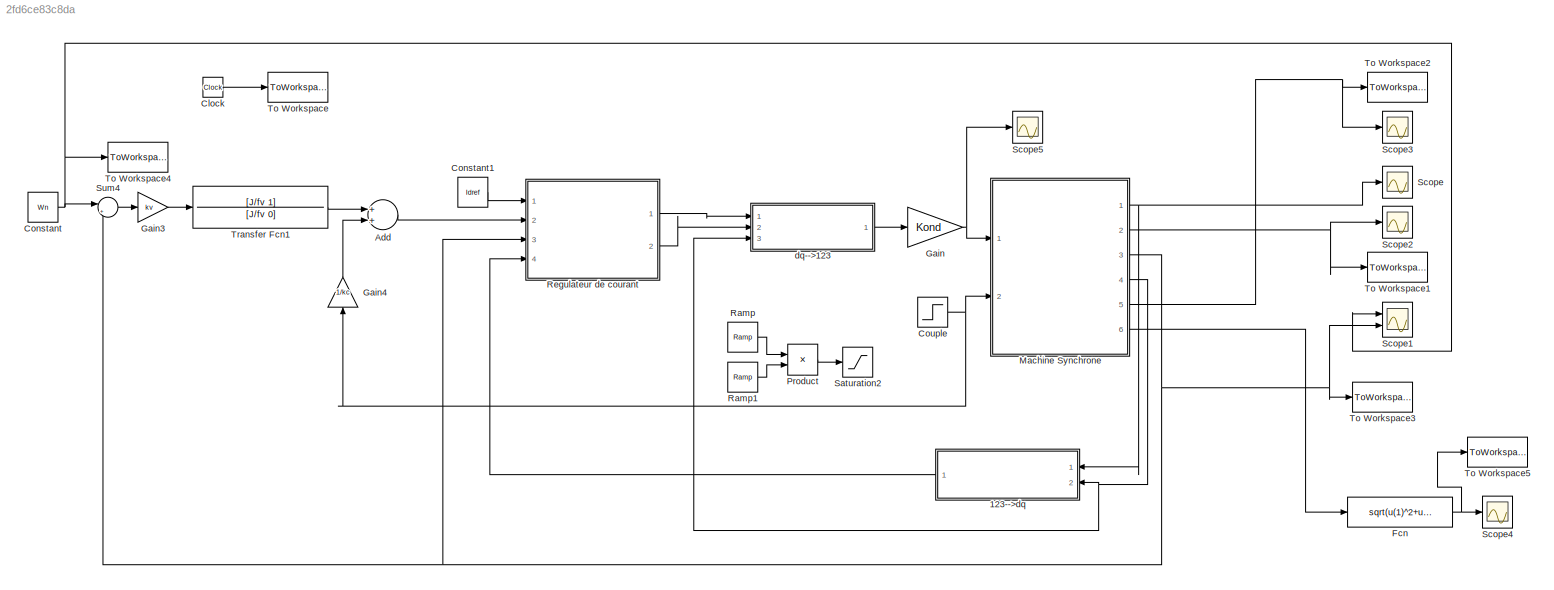
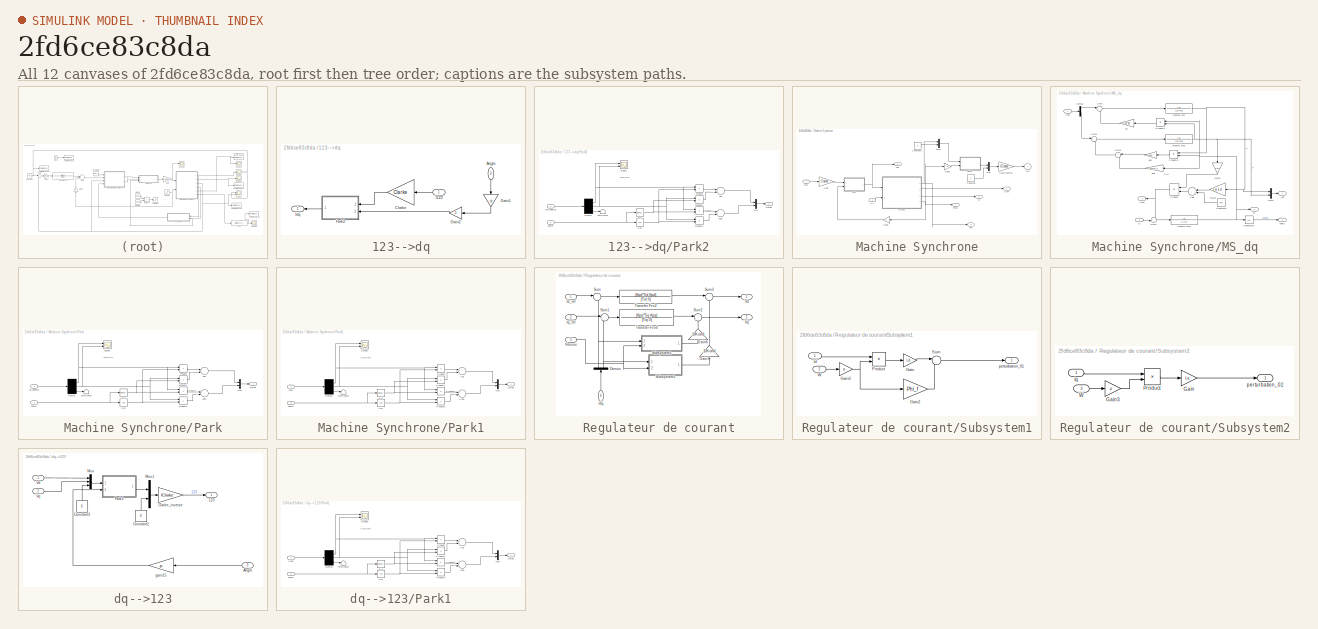
[diagram: thumbnail index - all 12 canvases of the model, root first then tree order]
MODEL slx_2fd6ce83c8da
KIND model
CONFIG AbsTol = auto
CONFIG EnableMultiTasking = off
CONFIG FixedStep = Tid/100
CONFIG MaxStep = auto
CONFIG MinStep = auto
CONFIG RelTol = 1e-3
CONFIG SampleTimeConstraint = Unconstrained
CONFIG Solver = FixedStepAuto
CONFIG SolverName = FixedStepAuto
CONFIG StartTime = 0.0
CONFIG StopTime = Tsim_all
BLOCK [SubSystem] 123-->dq
  Ports = [2, 1]
  RequestExecContextInheritance = off
BLOCK [Inport] 123-->dq/Angle
  IconDisplay = Port number
  Port = 2
BLOCK [Gain] 123-->dq/Clarke
  Gain = Clarke
  Multiplication = Matrix(K*u)
  OutDataTypeStr = Inherit: Inherit via internal rule
  ParamDataTypeStr = Inherit: Inherit via internal rule
  SaturateOnIntegerOverflow = off
BLOCK [Gain] 123-->dq/Gain1
  Gain = -p
  OutDataTypeStr = Inherit: Inherit via internal rule
  ParamDataTypeStr = Inherit: Inherit via internal rule
  SaturateOnIntegerOverflow = off
BLOCK [Gain] 123-->dq/Gain2
  Gain = -1
  OutDataTypeStr = Inherit: Inherit via internal rule
  ParamDataTypeStr = Inherit: Inherit via internal rule
  SaturateOnIntegerOverflow = off
BLOCK [Inport] 123-->dq/I123
  IconDisplay = Port number
BLOCK [Outport] 123-->dq/Idq
  IconDisplay = Port number
BLOCK [SubSystem] 123-->dq/Park2
  Ports = [2, 1]
  RequestExecContextInheritance = off
BLOCK [Sum] 123-->dq/Park2/Add
  InputSameDT = off
  OutDataTypeStr = Inherit: Inherit via internal rule
  Ports = [2, 1]
  SaturateOnIntegerOverflow = off
BLOCK [Sum] 123-->dq/Park2/Add1
  InputSameDT = off
  Inputs = -+
  OutDataTypeStr = Inherit: Inherit via internal rule
  Ports = [2, 1]
  SaturateOnIntegerOverflow = off
BLOCK [Trigonometry] 123-->dq/Park2/Cos
  Operator = cos
  Ports = [1, 1]
BLOCK [Demux] 123-->dq/Park2/Demux
  Outputs = 3
  Ports = [1, 3]
BLOCK [Inport] 123-->dq/Park2/Inalfabeta0
  IconDisplay = Port number
BLOCK [Mux] 123-->dq/Park2/Mux
  DisplayOption = bar
  Inputs = 2
  Ports = [2, 1]
BLOCK [Outport] 123-->dq/Park2/Outdq
  IconDisplay = Port number
BLOCK [Product] 123-->dq/Park2/Product
  InputSameDT = off
  OutDataTypeStr = Inherit: Inherit via internal rule
  Ports = [2, 1]
  RndMeth = Floor
  SaturateOnIntegerOverflow = off
BLOCK [Product] 123-->dq/Park2/Product1
  InputSameDT = off
  OutDataTypeStr = Inherit: Inherit via internal rule
  Ports = [2, 1]
  RndMeth = Floor
  SaturateOnIntegerOverflow = off
BLOCK [Product] 123-->dq/Park2/Product2
  InputSameDT = off
  OutDataTypeStr = Inherit: Inherit via internal rule
  Ports = [2, 1]
  RndMeth = Floor
  SaturateOnIntegerOverflow = off
BLOCK [Product] 123-->dq/Park2/Product3
  InputSameDT = off
  OutDataTypeStr = Inherit: Inherit via internal rule
  Ports = [2, 1]
  RndMeth = Floor
  SaturateOnIntegerOverflow = off
BLOCK [Scope] 123-->dq/Park2/Scope1
  Floating = off
  NumInputPorts = 2
  Ports = [2]
  ScopeSpecificationString = Simulink.scopes.TimeScopeBlockCfg('CurrentConfiguration', extmgr.ConfigurationSet(extmgr.Configuration('Core','General UI',true),extmgr.Configuration('Core','Source UI',true),extmgr.Configuration('Sources','WiredSimulink',true,'DataLoggingVariableName','ScopeData1'),extmgr.Configuration('Visuals','Time Domain',true,'SerializedDisplays',{struct('MinYLimReal','-1.53093','MaxYLimReal','1.53093','YLab...<+1376ch>  <repeated x4 — deduplicated; at blocks: Scope1>
BLOCK [Trigonometry] 123-->dq/Park2/Sin
  Ports = [1, 1]
BLOCK [Terminator] 123-->dq/Park2/Terminator
BLOCK [Inport] 123-->dq/Park2/angle
  IconDisplay = Port number
  Port = 2
BLOCK [Sum] Add
  InputSameDT = off
  OutDataTypeStr = Inherit: Inherit via internal rule
  Ports = [2, 1]
  SaturateOnIntegerOverflow = off
BLOCK [Clock] Clock
BLOCK [Constant] Constant
  Value = Wn
BLOCK [Constant] Constant1
  Value = Idref
BLOCK [Step] Couple
  After = Cn
  SampleTime = 0
  Time = delay_torque
BLOCK [Fcn] Fcn
  Expr = sqrt(u(1)^2+u(2)^2)
BLOCK [Gain] Gain
  Gain = Kond
  OutDataTypeStr = Inherit: Inherit via internal rule
  ParamDataTypeStr = Inherit: Inherit via internal rule
  SaturateOnIntegerOverflow = off
BLOCK [Gain] Gain3
  Gain = kv
  OutDataTypeStr = Inherit: Inherit via internal rule
  ParamDataTypeStr = Inherit: Inherit via internal rule
  SaturateOnIntegerOverflow = off
BLOCK [Gain] Gain4
  Gain = 1/kc
  OutDataTypeStr = Inherit: Inherit via internal rule
  ParamDataTypeStr = Inherit: Inherit via internal rule
  SaturateOnIntegerOverflow = off
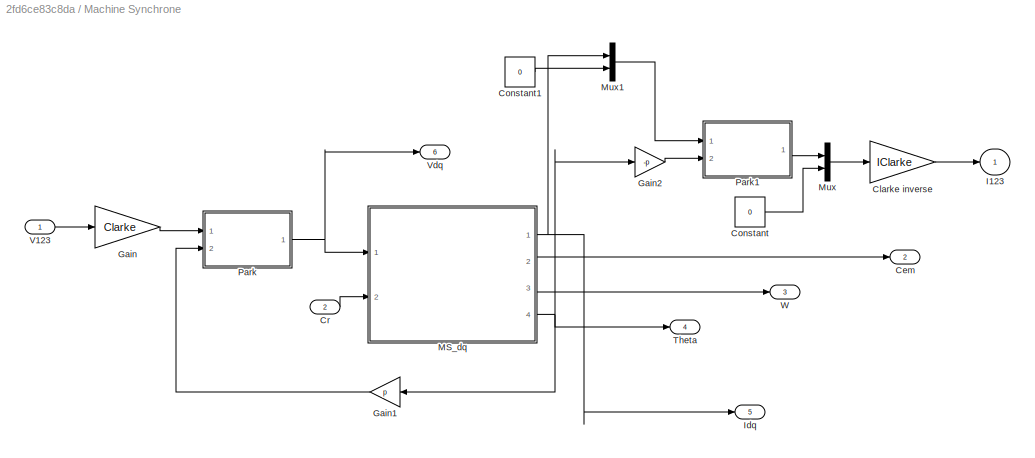
BLOCK [SubSystem] Machine Synchrone
  Ports = [2, 6]
  RequestExecContextInheritance = off
BLOCK [Outport] Machine Synchrone/Cem
  IconDisplay = Port number
  Port = 2
BLOCK [Gain] Machine Synchrone/Clarke inverse
  Gain = IClarke
  Multiplication = Matrix(K*u)
  OutDataTypeStr = Inherit: Inherit via internal rule
  ParamDataTypeStr = Inherit: Inherit via internal rule
  SaturateOnIntegerOverflow = off
BLOCK [Constant] Machine Synchrone/Constant
  Value = 0
BLOCK [Constant] Machine Synchrone/Constant1
  Value = 0
BLOCK [Inport] Machine Synchrone/Cr
  IconDisplay = Port number
  Port = 2
BLOCK [Gain] Machine Synchrone/Gain
  Gain = Clarke
  Multiplication = Matrix(K*u)
  OutDataTypeStr = Inherit: Inherit via internal rule
  ParamDataTypeStr = Inherit: Inherit via internal rule
  SaturateOnIntegerOverflow = off
BLOCK [Gain] Machine Synchrone/Gain1
  Gain = p
  OutDataTypeStr = Inherit: Inherit via internal rule
  ParamDataTypeStr = Inherit: Inherit via internal rule
  SaturateOnIntegerOverflow = off
BLOCK [Gain] Machine Synchrone/Gain2
  Gain = -p
  OutDataTypeStr = Inherit: Inherit via internal rule
  ParamDataTypeStr = Inherit: Inherit via internal rule
  SaturateOnIntegerOverflow = off
BLOCK [Outport] Machine Synchrone/I123
  IconDisplay = Port number
BLOCK [Outport] Machine Synchrone/Idq
  IconDisplay = Port number
  Port = 5
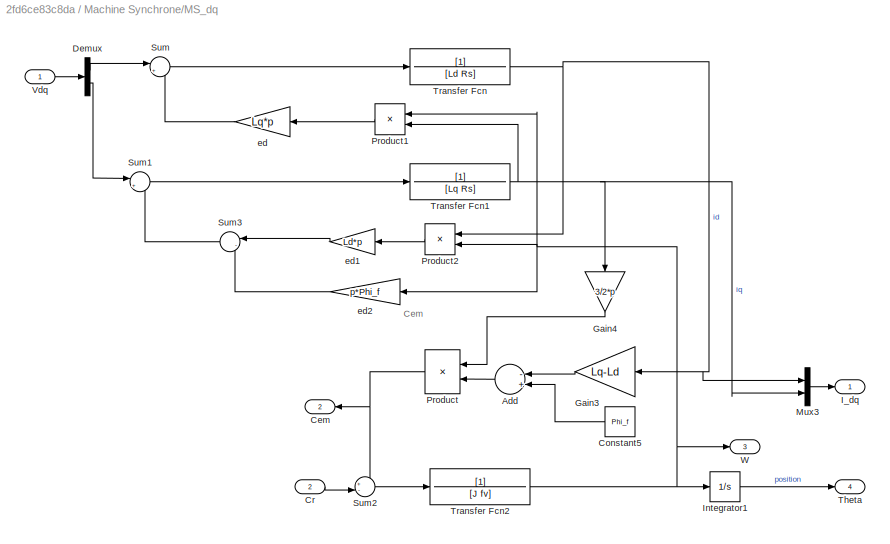
BLOCK [SubSystem] Machine Synchrone/MS_dq
  Ports = [2, 4]
  RequestExecContextInheritance = off
BLOCK [Sum] Machine Synchrone/MS_dq/Add
  InputSameDT = off
  Inputs = -+
  OutDataTypeStr = Inherit: Inherit via internal rule
  Ports = [2, 1]
  SaturateOnIntegerOverflow = off
BLOCK [Outport] Machine Synchrone/MS_dq/Cem
  IconDisplay = Port number
  Port = 2
BLOCK [Constant] Machine Synchrone/MS_dq/Constant5
  Value = Phi_f
BLOCK [Inport] Machine Synchrone/MS_dq/Cr
  IconDisplay = Port number
  Port = 2
BLOCK [Demux] Machine Synchrone/MS_dq/Demux
  DisplayOption = bar
  Outputs = 2
  Ports = [1, 2]
BLOCK [Gain] Machine Synchrone/MS_dq/Gain3
  Gain = Lq-Ld
  OutDataTypeStr = Inherit: Inherit via internal rule
  ParamDataTypeStr = Inherit: Inherit via internal rule
  SaturateOnIntegerOverflow = off
BLOCK [Gain] Machine Synchrone/MS_dq/Gain4
  Gain = 3/2*p
  OutDataTypeStr = Inherit: Inherit via internal rule
  ParamDataTypeStr = Inherit: Inherit via internal rule
  SaturateOnIntegerOverflow = off
BLOCK [Outport] Machine Synchrone/MS_dq/I_dq
  IconDisplay = Port number
BLOCK [Integrator] Machine Synchrone/MS_dq/Integrator1
  Ports = [1, 1]
BLOCK [Mux] Machine Synchrone/MS_dq/Mux3
  DisplayOption = bar
  Inputs = 2
  Ports = [2, 1]
BLOCK [Product] Machine Synchrone/MS_dq/Product
  InputSameDT = off
  OutDataTypeStr = Inherit: Inherit via internal rule
  Ports = [2, 1]
  RndMeth = Floor
  SaturateOnIntegerOverflow = off
BLOCK [Product] Machine Synchrone/MS_dq/Product1
  InputSameDT = off
  OutDataTypeStr = Inherit: Inherit via internal rule
  Ports = [2, 1]
  RndMeth = Floor
  SaturateOnIntegerOverflow = off
BLOCK [Product] Machine Synchrone/MS_dq/Product2
  InputSameDT = off
  OutDataTypeStr = Inherit: Inherit via internal rule
  Ports = [2, 1]
  RndMeth = Floor
  SaturateOnIntegerOverflow = off
BLOCK [Sum] Machine Synchrone/MS_dq/Sum
  IconShape = round
  InputSameDT = off
  Inputs = |++
  OutDataTypeStr = Inherit: Inherit via internal rule
  Ports = [2, 1]
  SaturateOnIntegerOverflow = off
BLOCK [Sum] Machine Synchrone/MS_dq/Sum1
  IconShape = round
  InputSameDT = off
  Inputs = |++
  OutDataTypeStr = Inherit: Inherit via internal rule
  Ports = [2, 1]
  SaturateOnIntegerOverflow = off
BLOCK [Sum] Machine Synchrone/MS_dq/Sum2
  IconShape = round
  InputSameDT = off
  Inputs = +-|
  OutDataTypeStr = Inherit: Inherit via internal rule
  Ports = [2, 1]
  SaturateOnIntegerOverflow = off
BLOCK [Sum] Machine Synchrone/MS_dq/Sum3
  IconShape = round
  InputSameDT = off
  Inputs = |--
  OutDataTypeStr = Inherit: Inherit via internal rule
  Ports = [2, 1]
  SaturateOnIntegerOverflow = off
BLOCK [Outport] Machine Synchrone/MS_dq/Theta
  IconDisplay = Port number
  Port = 4
BLOCK [TransferFcn] Machine Synchrone/MS_dq/Transfer Fcn
  Denominator = [Ld Rs]
BLOCK [TransferFcn] Machine Synchrone/MS_dq/Transfer Fcn1
  Denominator = [Lq Rs]
BLOCK [TransferFcn] Machine Synchrone/MS_dq/Transfer Fcn2
  Denominator = [J fv]
BLOCK [Inport] Machine Synchrone/MS_dq/Vdq
  IconDisplay = Port number
BLOCK [Outport] Machine Synchrone/MS_dq/W
  IconDisplay = Port number
  Port = 3
BLOCK [Gain] Machine Synchrone/MS_dq/ed
  Gain = Lq*p
  OutDataTypeStr = Inherit: Inherit via internal rule
  ParamDataTypeStr = Inherit: Inherit via internal rule
  SaturateOnIntegerOverflow = off
BLOCK [Gain] Machine Synchrone/MS_dq/ed1
  Gain = Ld*p
  OutDataTypeStr = Inherit: Inherit via internal rule
  ParamDataTypeStr = Inherit: Inherit via internal rule
  SaturateOnIntegerOverflow = off
BLOCK [Gain] Machine Synchrone/MS_dq/ed2
  Gain = p*Phi_f
  OutDataTypeStr = Inherit: Inherit via internal rule
  ParamDataTypeStr = Inherit: Inherit via internal rule
  SaturateOnIntegerOverflow = off
BLOCK [Mux] Machine Synchrone/Mux
  DisplayOption = bar
  Inputs = 2
  Ports = [2, 1]
BLOCK [Mux] Machine Synchrone/Mux1
  DisplayOption = bar
  Inputs = 2
  Ports = [2, 1]
BLOCK [SubSystem] Machine Synchrone/Park
  Ports = [2, 1]
  RequestExecContextInheritance = off
BLOCK [Sum] Machine Synchrone/Park/Add
  InputSameDT = off
  OutDataTypeStr = Inherit: Inherit via internal rule
  Ports = [2, 1]
  SaturateOnIntegerOverflow = off
BLOCK [Sum] Machine Synchrone/Park/Add1
  InputSameDT = off
  Inputs = -+
  OutDataTypeStr = Inherit: Inherit via internal rule
  Ports = [2, 1]
  SaturateOnIntegerOverflow = off
BLOCK [Trigonometry] Machine Synchrone/Park/Cos
  Operator = cos
  Ports = [1, 1]
BLOCK [Demux] Machine Synchrone/Park/Demux
  Outputs = 3
  Ports = [1, 3]
BLOCK [Inport] Machine Synchrone/Park/Ialfabeta0
  IconDisplay = Port number
BLOCK [Mux] Machine Synchrone/Park/Mux
  DisplayOption = bar
  Inputs = 2
  Ports = [2, 1]
BLOCK [Outport] Machine Synchrone/Park/Outdq
  IconDisplay = Port number
BLOCK [Product] Machine Synchrone/Park/Product
  InputSameDT = off
  OutDataTypeStr = Inherit: Inherit via internal rule
  Ports = [2, 1]
  RndMeth = Floor
  SaturateOnIntegerOverflow = off
BLOCK [Product] Machine Synchrone/Park/Product1
  InputSameDT = off
  OutDataTypeStr = Inherit: Inherit via internal rule
  Ports = [2, 1]
  RndMeth = Floor
  SaturateOnIntegerOverflow = off
BLOCK [Product] Machine Synchrone/Park/Product2
  InputSameDT = off
  OutDataTypeStr = Inherit: Inherit via internal rule
  Ports = [2, 1]
  RndMeth = Floor
  SaturateOnIntegerOverflow = off
BLOCK [Product] Machine Synchrone/Park/Product3
  InputSameDT = off
  OutDataTypeStr = Inherit: Inherit via internal rule
  Ports = [2, 1]
  RndMeth = Floor
  SaturateOnIntegerOverflow = off
BLOCK [Scope] Machine Synchrone/Park/Scope1
  Floating = off
  NumInputPorts = 2
  Ports = [2]
BLOCK [Trigonometry] Machine Synchrone/Park/Sin
  Ports = [1, 1]
BLOCK [Terminator] Machine Synchrone/Park/Terminator
BLOCK [Inport] Machine Synchrone/Park/angle
  IconDisplay = Port number
  Port = 2
BLOCK [SubSystem] Machine Synchrone/Park1
  Ports = [2, 1]
  RequestExecContextInheritance = off
BLOCK [Sum] Machine Synchrone/Park1/Add
  InputSameDT = off
  OutDataTypeStr = Inherit: Inherit via internal rule
  Ports = [2, 1]
  SaturateOnIntegerOverflow = off
BLOCK [Sum] Machine Synchrone/Park1/Add1
  InputSameDT = off
  Inputs = -+
  OutDataTypeStr = Inherit: Inherit via internal rule
  Ports = [2, 1]
  SaturateOnIntegerOverflow = off
BLOCK [Trigonometry] Machine Synchrone/Park1/Cos
  Operator = cos
  Ports = [1, 1]
BLOCK [Demux] Machine Synchrone/Park1/Demux
  Outputs = 3
  Ports = [1, 3]
BLOCK [Inport] Machine Synchrone/Park1/Idq0
  IconDisplay = Port number
BLOCK [Mux] Machine Synchrone/Park1/Mux
  DisplayOption = bar
  Inputs = 2
  Ports = [2, 1]
BLOCK [Outport] Machine Synchrone/Park1/Outdq
  IconDisplay = Port number
BLOCK [Product] Machine Synchrone/Park1/Product
  InputSameDT = off
  OutDataTypeStr = Inherit: Inherit via internal rule
  Ports = [2, 1]
  RndMeth = Floor
  SaturateOnIntegerOverflow = off
BLOCK [Product] Machine Synchrone/Park1/Product1
  InputSameDT = off
  OutDataTypeStr = Inherit: Inherit via internal rule
  Ports = [2, 1]
  RndMeth = Floor
  SaturateOnIntegerOverflow = off
BLOCK [Product] Machine Synchrone/Park1/Product2
  InputSameDT = off
  OutDataTypeStr = Inherit: Inherit via internal rule
  Ports = [2, 1]
  RndMeth = Floor
  SaturateOnIntegerOverflow = off
BLOCK [Product] Machine Synchrone/Park1/Product3
  InputSameDT = off
  OutDataTypeStr = Inherit: Inherit via internal rule
  Ports = [2, 1]
  RndMeth = Floor
  SaturateOnIntegerOverflow = off
BLOCK [Scope] Machine Synchrone/Park1/Scope1
  Floating = off
  NumInputPorts = 2
  Ports = [2]
BLOCK [Trigonometry] Machine Synchrone/Park1/Sin
  Ports = [1, 1]
BLOCK [Terminator] Machine Synchrone/Park1/Terminator
BLOCK [Inport] Machine Synchrone/Park1/angle
  IconDisplay = Port number
  Port = 2
BLOCK [Outport] Machine Synchrone/Theta
  IconDisplay = Port number
  Port = 4
BLOCK [Inport] Machine Synchrone/V123
  IconDisplay = Port number
BLOCK [Outport] Machine Synchrone/Vdq
  IconDisplay = Port number
  Port = 6
BLOCK [Outport] Machine Synchrone/W
  IconDisplay = Port number
  Port = 3
BLOCK [Product] Product
  Commented = on
  InputSameDT = off
  OutDataTypeStr = Inherit: Inherit via internal rule
  Ports = [2, 1]
  RndMeth = Floor
  SaturateOnIntegerOverflow = off
BLOCK [Reference] Ramp  REF=simulink/Sources/Ramp
  Commented = on
  Ports = [0, 1]
  SourceBlock = simulink/Sources/Ramp
  SourceProductBaseCode = SL
  SourceProductName = Simulink
  SourceType = Ramp
BLOCK [Reference] Ramp1  REF=simulink/Sources/Ramp
  Commented = on
  Ports = [0, 1]
  SourceBlock = simulink/Sources/Ramp
  SourceProductBaseCode = SL
  SourceProductName = Simulink
  SourceType = Ramp
BLOCK [SubSystem] Regulateur de courant
  Ports = [4, 2]
  RequestExecContextInheritance = off
BLOCK [Demux] Regulateur de courant/Demux
  DisplayOption = bar
  Outputs = 2
  Ports = [1, 2]
BLOCK [Gain] Regulateur de courant/Gain6
  Gain = 1/Kond
  OutDataTypeStr = Inherit: Inherit via internal rule
  ParamDataTypeStr = Inherit: Inherit via internal rule
  SaturateOnIntegerOverflow = off
BLOCK [Gain] Regulateur de courant/Gain7
  Gain = 1/Kond
  OutDataTypeStr = Inherit: Inherit via internal rule
  ParamDataTypeStr = Inherit: Inherit via internal rule
  SaturateOnIntegerOverflow = off
BLOCK [Inport] Regulateur de courant/Id_ref
  IconDisplay = Port number
BLOCK [Inport] Regulateur de courant/Idq
  IconDisplay = Port number
  Port = 4
BLOCK [Inport] Regulateur de courant/Iq_ref
  IconDisplay = Port number
  Port = 2
BLOCK [SubSystem] Regulateur de courant/Subsystem1
  Ports = [2, 1]
  RequestExecContextInheritance = off
BLOCK [Gain] Regulateur de courant/Subsystem1/Gain
  Gain = Ld
  OutDataTypeStr = Inherit: Inherit via internal rule
  ParamDataTypeStr = Inherit: Inherit via internal rule
  SaturateOnIntegerOverflow = off
BLOCK [Gain] Regulateur de courant/Subsystem1/Gain2
  Gain = Phi_f
  OutDataTypeStr = Inherit: Inherit via internal rule
  ParamDataTypeStr = Inherit: Inherit via internal rule
  SaturateOnIntegerOverflow = off
BLOCK [Gain] Regulateur de courant/Subsystem1/Gain3
  Gain = p
  OutDataTypeStr = Inherit: Inherit via internal rule
  ParamDataTypeStr = Inherit: Inherit via internal rule
  SaturateOnIntegerOverflow = off
BLOCK [Inport] Regulateur de courant/Subsystem1/Id
  IconDisplay = Port number
BLOCK [Product] Regulateur de courant/Subsystem1/Product
  InputSameDT = off
  OutDataTypeStr = Inherit: Inherit via internal rule
  Ports = [2, 1]
  RndMeth = Floor
  SaturateOnIntegerOverflow = off
BLOCK [Sum] Regulateur de courant/Subsystem1/Sum
  IconShape = round
  InputSameDT = off
  Inputs = |--
  OutDataTypeStr = Inherit: Inherit via internal rule
  Ports = [2, 1]
  SaturateOnIntegerOverflow = off
BLOCK [Inport] Regulateur de courant/Subsystem1/W
  IconDisplay = Port number
  Port = 2
BLOCK [Outport] Regulateur de courant/Subsystem1/perturbation_01
  IconDisplay = Port number
BLOCK [SubSystem] Regulateur de courant/Subsystem2
  Ports = [2, 1]
  RequestExecContextInheritance = off
BLOCK [Gain] Regulateur de courant/Subsystem2/Gain
  Gain = Lq
  OutDataTypeStr = Inherit: Inherit via internal rule
  ParamDataTypeStr = Inherit: Inherit via internal rule
  SaturateOnIntegerOverflow = off
BLOCK [Gain] Regulateur de courant/Subsystem2/Gain3
  Gain = p
  OutDataTypeStr = Inherit: Inherit via internal rule
  ParamDataTypeStr = Inherit: Inherit via internal rule
  SaturateOnIntegerOverflow = off
BLOCK [Inport] Regulateur de courant/Subsystem2/Iq
  IconDisplay = Port number
BLOCK [Product] Regulateur de courant/Subsystem2/Product
  InputSameDT = off
  OutDataTypeStr = Inherit: Inherit via internal rule
  Ports = [2, 1]
  RndMeth = Floor
  SaturateOnIntegerOverflow = off
BLOCK [Inport] Regulateur de courant/Subsystem2/W
  IconDisplay = Port number
  Port = 2
BLOCK [Outport] Regulateur de courant/Subsystem2/perturbation_02
  IconDisplay = Port number
BLOCK [Sum] Regulateur de courant/Sum
  IconShape = round
  InputSameDT = off
  Inputs = |+-
  OutDataTypeStr = Inherit: Inherit via internal rule
  Ports = [2, 1]
  SaturateOnIntegerOverflow = off
BLOCK [Sum] Regulateur de courant/Sum1
  IconShape = round
  InputSameDT = off
  Inputs = |+-
  OutDataTypeStr = Inherit: Inherit via internal rule
  Ports = [2, 1]
  SaturateOnIntegerOverflow = off
BLOCK [Sum] Regulateur de courant/Sum2
  IconShape = round
  InputSameDT = off
  Inputs = |+-
  OutDataTypeStr = Inherit: Inherit via internal rule
  Ports = [2, 1]
  SaturateOnIntegerOverflow = off
BLOCK [Sum] Regulateur de courant/Sum3
  IconShape = round
  InputSameDT = off
  Inputs = |+-
  OutDataTypeStr = Inherit: Inherit via internal rule
  Ports = [2, 1]
  SaturateOnIntegerOverflow = off
BLOCK [TransferFcn] Regulateur de courant/Transfer Fcn2
  Denominator = [Tid 0]
  Numerator = [Kpd*Tid Kpd]
BLOCK [TransferFcn] Regulateur de courant/Transfer Fcn4
  Denominator = [Tiq 0]
  Numerator = [Kpq*Tiq Kpq]
BLOCK [Outport] Regulateur de courant/Vd
  IconDisplay = Port number
BLOCK [Inport] Regulateur de courant/Vitesse
  IconDisplay = Port number
  Port = 3
BLOCK [Outport] Regulateur de courant/Vq
  IconDisplay = Port number
  Port = 2
BLOCK [Saturate] Saturation2
  Commented = on
  InputPortMap = u0
  LowerLimit = -Cn
  Ports = [1, 1]
  UpperLimit = Cn
BLOCK [Scope] Scope
  Floating = off
  NumInputPorts = 1
  Ports = [1]
  ScopeSpecificationString = Simulink.scopes.TimeScopeBlockCfg('CurrentConfiguration', extmgr.ConfigurationSet(extmgr.Configuration('Core','General UI',true),extmgr.Configuration('Core','Source UI',true),extmgr.Configuration('Sources','WiredSimulink',true,'DataLoggingVariableName','ScopeData1'),extmgr.Configuration('Visuals','Time Domain',true,'SerializedDisplays',{struct('MinYLimReal','-6773812.7869','MaxYLimReal','60964298....<+1526ch>
BLOCK [Scope] Scope1
  Floating = off
  NumInputPorts = 2
  Ports = [2]
  ScopeSpecificationString = Simulink.scopes.TimeScopeBlockCfg('CurrentConfiguration', extmgr.ConfigurationSet(extmgr.Configuration('Core','General UI',true),extmgr.Configuration('Core','Source UI',true),extmgr.Configuration('Sources','WiredSimulink',true,'DataLoggingVariableName','ScopeData2'),extmgr.Configuration('Visuals','Time Domain',true,'SerializedDisplays',{struct('MinYLimReal','-19.87509','MaxYLimReal','178.87582','Y...<+1499ch>
BLOCK [Scope] Scope2
  Floating = off
  NumInputPorts = 1
  Ports = [1]
  ScopeSpecificationString = Simulink.scopes.TimeScopeBlockCfg('CurrentConfiguration', extmgr.ConfigurationSet(extmgr.Configuration('Core','General UI',true),extmgr.Configuration('Core','Source UI',true),extmgr.Configuration('Sources','WiredSimulink',true,'DataLoggingVariableName','ScopeData3'),extmgr.Configuration('Visuals','Time Domain',true,'SerializedDisplays',{struct('MinYLimReal','-6.05871','MaxYLimReal','6.0596','YLabe...<+1473ch>
BLOCK [Scope] Scope3
  Floating = off
  NumInputPorts = 1
  Ports = [1]
  ScopeSpecificationString = Simulink.scopes.TimeScopeBlockCfg('CurrentConfiguration', extmgr.ConfigurationSet(extmgr.Configuration('Core','General UI',true),extmgr.Configuration('Core','Source UI',true),extmgr.Configuration('Sources','WiredSimulink',true,'DataLoggingVariableName','ScopeData4'),extmgr.Configuration('Visuals','Time Domain',true,'SerializedDisplays',{struct('MinYLimReal','-0.2887','MaxYLimReal','2.59831','YLabe...<+1474ch>
BLOCK [Scope] Scope4
  Floating = off
  NumInputPorts = 1
  Ports = [1]
  ScopeSpecificationString = Simulink.scopes.TimeScopeBlockCfg('CurrentConfiguration', extmgr.ConfigurationSet(extmgr.Configuration('Core','General UI',true),extmgr.Configuration('Core','Source UI',true),extmgr.Configuration('Sources','WiredSimulink',true,'DataLoggingVariableName','ScopeData1'),extmgr.Configuration('Visuals','Time Domain',true,'SerializedDisplays',{struct('MinYLimReal','-35.10055','MaxYLimReal','403.55038','Y...<+1470ch>
BLOCK [Scope] Scope5
  Floating = off
  NumInputPorts = 1
  Ports = [1]
  ScopeSpecificationString = Simulink.scopes.TimeScopeBlockCfg('CurrentConfiguration', extmgr.ConfigurationSet(extmgr.Configuration('Core','General UI',true),extmgr.Configuration('Core','Source UI',true),extmgr.Configuration('Sources','WiredSimulink',true,'DataLoggingVariableName','ScopeData2'),extmgr.Configuration('Visuals','Time Domain',true,'SerializedDisplays',{struct('MinYLimReal','255.80182','MaxYLimReal','341.39027','Y...<+1468ch>
BLOCK [Sum] Sum4
  IconShape = round
  InputSameDT = off
  Inputs = |+-
  OutDataTypeStr = Inherit: Inherit via internal rule
  Ports = [2, 1]
  SaturateOnIntegerOverflow = off
BLOCK [ToWorkspace] To Workspace
  FixptAsFi = on
  MaxDataPoints = inf
  Ports = [1]
  SampleTime = -1
  Save2DSignal = 3-D array (concatenate along third dimension)
  VariableName = t
BLOCK [ToWorkspace] To Workspace1
  FixptAsFi = on
  MaxDataPoints = inf
  Ports = [1]
  SampleTime = -1
  Save2DSignal = 3-D array (concatenate along third dimension)
  VariableName = Cem
BLOCK [ToWorkspace] To Workspace2
  FixptAsFi = on
  MaxDataPoints = inf
  Ports = [1]
  SampleTime = -1
  Save2DSignal = 3-D array (concatenate along third dimension)
  VariableName = Idq
BLOCK [ToWorkspace] To Workspace3
  FixptAsFi = on
  MaxDataPoints = inf
  Ports = [1]
  SampleTime = -1
  Save2DSignal = 3-D array (concatenate along third dimension)
  VariableName = Vitesse
BLOCK [ToWorkspace] To Workspace4
  FixptAsFi = on
  MaxDataPoints = inf
  Ports = [1]
  SampleTime = -1
  Save2DSignal = 3-D array (concatenate along third dimension)
  VariableName = Vitesse_ref
BLOCK [ToWorkspace] To Workspace5
  FixptAsFi = on
  MaxDataPoints = inf
  Ports = [1]
  SampleTime = -1
  Save2DSignal = 3-D array (concatenate along third dimension)
  VariableName = Vdq
BLOCK [TransferFcn] Transfer Fcn1
  Denominator = [J/fv 0]
  Numerator = [J/fv 1]
BLOCK [SubSystem] dq-->123
  Ports = [3, 1]
  RequestExecContextInheritance = off
BLOCK [Outport] dq-->123/123
  IconDisplay = Port number
BLOCK [Inport] dq-->123/Angle
  IconDisplay = Port number
  Port = 3
BLOCK [Gain] dq-->123/Clarke_inverse
  Gain = IClarke
  Multiplication = Matrix(K*u)
  OutDataTypeStr = Inherit: Inherit via internal rule
  ParamDataTypeStr = Inherit: Inherit via internal rule
  SaturateOnIntegerOverflow = off
BLOCK [Constant] dq-->123/Constant2
  Value = 0
BLOCK [Constant] dq-->123/Constant3
  Value = 0
BLOCK [Mux] dq-->123/Mux
  DisplayOption = bar
  Inputs = 3
  Ports = [3, 1]
BLOCK [Mux] dq-->123/Mux1
  DisplayOption = bar
  Inputs = 2
  Ports = [2, 1]
BLOCK [SubSystem] dq-->123/Park1
  Ports = [2, 1]
  RequestExecContextInheritance = off
BLOCK [Sum] dq-->123/Park1/Add
  InputSameDT = off
  OutDataTypeStr = Inherit: Inherit via internal rule
  Ports = [2, 1]
  SaturateOnIntegerOverflow = off
BLOCK [Sum] dq-->123/Park1/Add1
  InputSameDT = off
  Inputs = -+
  OutDataTypeStr = Inherit: Inherit via internal rule
  Ports = [2, 1]
  SaturateOnIntegerOverflow = off
BLOCK [Trigonometry] dq-->123/Park1/Cos
  Operator = cos
  Ports = [1, 1]
BLOCK [Demux] dq-->123/Park1/Demux
  Outputs = 3
  Ports = [1, 3]
BLOCK [Mux] dq-->123/Park1/Mux
  DisplayOption = bar
  Inputs = 2
  Ports = [2, 1]
BLOCK [Outport] dq-->123/Park1/Outab
  IconDisplay = Port number
BLOCK [Product] dq-->123/Park1/Product
  InputSameDT = off
  OutDataTypeStr = Inherit: Inherit via internal rule
  Ports = [2, 1]
  RndMeth = Floor
  SaturateOnIntegerOverflow = off
BLOCK [Product] dq-->123/Park1/Product1
  InputSameDT = off
  OutDataTypeStr = Inherit: Inherit via internal rule
  Ports = [2, 1]
  RndMeth = Floor
  SaturateOnIntegerOverflow = off
BLOCK [Product] dq-->123/Park1/Product2
  InputSameDT = off
  OutDataTypeStr = Inherit: Inherit via internal rule
  Ports = [2, 1]
  RndMeth = Floor
  SaturateOnIntegerOverflow = off
BLOCK [Product] dq-->123/Park1/Product3
  InputSameDT = off
  OutDataTypeStr = Inherit: Inherit via internal rule
  Ports = [2, 1]
  RndMeth = Floor
  SaturateOnIntegerOverflow = off
BLOCK [Scope] dq-->123/Park1/Scope1
  Floating = off
  NumInputPorts = 2
  Ports = [2]
BLOCK [Trigonometry] dq-->123/Park1/Sin
  Ports = [1, 1]
BLOCK [Terminator] dq-->123/Park1/Terminator
BLOCK [Inport] dq-->123/Park1/Vdq0
  IconDisplay = Port number
BLOCK [Inport] dq-->123/Park1/angle
  IconDisplay = Port number
  Port = 2
BLOCK [Inport] dq-->123/Vd
  IconDisplay = Port number
BLOCK [Inport] dq-->123/Vq
  IconDisplay = Port number
  Port = 2
BLOCK [Gain] dq-->123/gain15
  Gain = -p
  OutDataTypeStr = Inherit: Inherit via internal rule
  ParamDataTypeStr = Inherit: Inherit via internal rule
  SaturateOnIntegerOverflow = off
ANNOTATION 123-->dq/Park2: Subsystem
ANNOTATION Machine Synchrone/MS_dq: Cem
ANNOTATION Machine Synchrone/Park: Subsystem
ANNOTATION Machine Synchrone/Park1: Subsystem
ANNOTATION dq-->123/Park1: Subsystem
LINE 123-->dq/Angle:1 -> 123-->dq/Gain1:1
LINE 123-->dq/Clarke:1 -> 123-->dq/Park2:1
LINE 123-->dq/Gain1:1 -> 123-->dq/Gain2:1
LINE 123-->dq/Gain2:1 -> 123-->dq/Park2:2
LINE 123-->dq/I123:1 -> 123-->dq/Clarke:1
LINE 123-->dq/Park2/Add1:1 -> 123-->dq/Park2/Mux:2
LINE 123-->dq/Park2/Add:1 -> 123-->dq/Park2/Mux:1
NET 123-->dq/Park2/Cos:1 -> 123-->dq/Park2/Product3:2, 123-->dq/Park2/Product:2
NET 123-->dq/Park2/Demux:1 -> 123-->dq/Park2/Product2:1, 123-->dq/Park2/Product:1, 123-->dq/Park2/Scope1:1
NET 123-->dq/Park2/Demux:2 -> 123-->dq/Park2/Product1:1, 123-->dq/Park2/Product3:1, 123-->dq/Park2/Scope1:2
LINE 123-->dq/Park2/Demux:3 -> 123-->dq/Park2/Terminator:1
LINE 123-->dq/Park2/Inalfabeta0:1 -> 123-->dq/Park2/Demux:1
LINE 123-->dq/Park2/Mux:1 -> 123-->dq/Park2/Outdq:1
LINE 123-->dq/Park2/Product1:1 -> 123-->dq/Park2/Add:2
LINE 123-->dq/Park2/Product2:1 -> 123-->dq/Park2/Add1:1
LINE 123-->dq/Park2/Product3:1 -> 123-->dq/Park2/Add1:2
LINE 123-->dq/Park2/Product:1 -> 123-->dq/Park2/Add:1
NET 123-->dq/Park2/Sin:1 -> 123-->dq/Park2/Product1:2, 123-->dq/Park2/Product2:2
NET 123-->dq/Park2/angle:1 -> 123-->dq/Park2/Cos:1, 123-->dq/Park2/Sin:1
LINE 123-->dq/Park2:1 -> 123-->dq/Idq:1
LINE 123-->dq:1 -> Regulateur de courant:4
LINE Add:1 -> Regulateur de courant:2
LINE Clock:1 -> To Workspace:1
LINE Constant1:1 -> Regulateur de courant:1
NET Constant:1 -> Scope1:1, Sum4:1, To Workspace4:1
NET Couple:1 -> Gain4:1, Machine Synchrone:2
NET Fcn:1 -> Scope4:1, To Workspace5:1
LINE Gain3:1 -> Transfer Fcn1:1
LINE Gain4:1 -> Add:2
NET Gain:1 -> Machine Synchrone:1, Scope5:1
LINE Machine Synchrone/Clarke inverse:1 -> Machine Synchrone/I123:1
LINE Machine Synchrone/Constant1:1 -> Machine Synchrone/Mux1:2
LINE Machine Synchrone/Constant:1 -> Machine Synchrone/Mux:2
LINE Machine Synchrone/Cr:1 -> Machine Synchrone/MS_dq:2
LINE Machine Synchrone/Gain1:1 -> Machine Synchrone/Park:2
LINE Machine Synchrone/Gain2:1 -> Machine Synchrone/Park1:2
LINE Machine Synchrone/Gain:1 -> Machine Synchrone/Park:1
LINE Machine Synchrone/MS_dq/Add:1 -> Machine Synchrone/MS_dq/Product:2
LINE Machine Synchrone/MS_dq/Constant5:1 -> Machine Synchrone/MS_dq/Add:2
LINE Machine Synchrone/MS_dq/Cr:1 -> Machine Synchrone/MS_dq/Sum2:2
LINE Machine Synchrone/MS_dq/Demux:1 -> Machine Synchrone/MS_dq/Sum:1
LINE Machine Synchrone/MS_dq/Demux:2 -> Machine Synchrone/MS_dq/Sum1:1
LINE Machine Synchrone/MS_dq/Gain3:1 -> Machine Synchrone/MS_dq/Add:1
LINE Machine Synchrone/MS_dq/Gain4:1 -> Machine Synchrone/MS_dq/Product:1
LINE Machine Synchrone/MS_dq/Integrator1:1 -> Machine Synchrone/MS_dq/Theta:1
LINE Machine Synchrone/MS_dq/Mux3:1 -> Machine Synchrone/MS_dq/I_dq:1
LINE Machine Synchrone/MS_dq/Product1:1 -> Machine Synchrone/MS_dq/ed:1
LINE Machine Synchrone/MS_dq/Product2:1 -> Machine Synchrone/MS_dq/ed1:1
NET Machine Synchrone/MS_dq/Product:1 -> Machine Synchrone/MS_dq/Cem:1, Machine Synchrone/MS_dq/Sum2:1
LINE Machine Synchrone/MS_dq/Sum1:1 -> Machine Synchrone/MS_dq/Transfer Fcn1:1
LINE Machine Synchrone/MS_dq/Sum2:1 -> Machine Synchrone/MS_dq/Transfer Fcn2:1
LINE Machine Synchrone/MS_dq/Sum3:1 -> Machine Synchrone/MS_dq/Sum1:2
LINE Machine Synchrone/MS_dq/Sum:1 -> Machine Synchrone/MS_dq/Transfer Fcn:1
NET Machine Synchrone/MS_dq/Transfer Fcn1:1 -> Machine Synchrone/MS_dq/Gain4:1, Machine Synchrone/MS_dq/Mux3:2, Machine Synchrone/MS_dq/Product1:2
NET Machine Synchrone/MS_dq/Transfer Fcn2:1 -> Machine Synchrone/MS_dq/Integrator1:1, Machine Synchrone/MS_dq/Product1:1, Machine Synchrone/MS_dq/Product2:2, Machine Synchrone/MS_dq/W:1, Machine Synchrone/MS_dq/ed2:1
NET Machine Synchrone/MS_dq/Transfer Fcn:1 -> Machine Synchrone/MS_dq/Gain3:1, Machine Synchrone/MS_dq/Mux3:1, Machine Synchrone/MS_dq/Product2:1
LINE Machine Synchrone/MS_dq/Vdq:1 -> Machine Synchrone/MS_dq/Demux:1
LINE Machine Synchrone/MS_dq/ed1:1 -> Machine Synchrone/MS_dq/Sum3:1
LINE Machine Synchrone/MS_dq/ed2:1 -> Machine Synchrone/MS_dq/Sum3:2
LINE Machine Synchrone/MS_dq/ed:1 -> Machine Synchrone/MS_dq/Sum:2
NET Machine Synchrone/MS_dq:1 -> Machine Synchrone/Idq:1, Machine Synchrone/Mux1:1
LINE Machine Synchrone/MS_dq:2 -> Machine Synchrone/Cem:1
LINE Machine Synchrone/MS_dq:3 -> Machine Synchrone/W:1
NET Machine Synchrone/MS_dq:4 -> Machine Synchrone/Gain1:1, Machine Synchrone/Gain2:1, Machine Synchrone/Theta:1
LINE Machine Synchrone/Mux1:1 -> Machine Synchrone/Park1:1
LINE Machine Synchrone/Mux:1 -> Machine Synchrone/Clarke inverse:1
LINE Machine Synchrone/Park/Add1:1 -> Machine Synchrone/Park/Mux:2
LINE Machine Synchrone/Park/Add:1 -> Machine Synchrone/Park/Mux:1
NET Machine Synchrone/Park/Cos:1 -> Machine Synchrone/Park/Product3:2, Machine Synchrone/Park/Product:2
NET Machine Synchrone/Park/Demux:1 -> Machine Synchrone/Park/Product2:1, Machine Synchrone/Park/Product:1, Machine Synchrone/Park/Scope1:1
NET Machine Synchrone/Park/Demux:2 -> Machine Synchrone/Park/Product1:1, Machine Synchrone/Park/Product3:1, Machine Synchrone/Park/Scope1:2
LINE Machine Synchrone/Park/Demux:3 -> Machine Synchrone/Park/Terminator:1
LINE Machine Synchrone/Park/Ialfabeta0:1 -> Machine Synchrone/Park/Demux:1
LINE Machine Synchrone/Park/Mux:1 -> Machine Synchrone/Park/Outdq:1
LINE Machine Synchrone/Park/Product1:1 -> Machine Synchrone/Park/Add:2
LINE Machine Synchrone/Park/Product2:1 -> Machine Synchrone/Park/Add1:1
LINE Machine Synchrone/Park/Product3:1 -> Machine Synchrone/Park/Add1:2
LINE Machine Synchrone/Park/Product:1 -> Machine Synchrone/Park/Add:1
NET Machine Synchrone/Park/Sin:1 -> Machine Synchrone/Park/Product1:2, Machine Synchrone/Park/Product2:2
NET Machine Synchrone/Park/angle:1 -> Machine Synchrone/Park/Cos:1, Machine Synchrone/Park/Sin:1
LINE Machine Synchrone/Park1/Add1:1 -> Machine Synchrone/Park1/Mux:2
LINE Machine Synchrone/Park1/Add:1 -> Machine Synchrone/Park1/Mux:1
NET Machine Synchrone/Park1/Cos:1 -> Machine Synchrone/Park1/Product3:2, Machine Synchrone/Park1/Product:2
NET Machine Synchrone/Park1/Demux:1 -> Machine Synchrone/Park1/Product2:1, Machine Synchrone/Park1/Product:1, Machine Synchrone/Park1/Scope1:1
NET Machine Synchrone/Park1/Demux:2 -> Machine Synchrone/Park1/Product1:1, Machine Synchrone/Park1/Product3:1, Machine Synchrone/Park1/Scope1:2
LINE Machine Synchrone/Park1/Demux:3 -> Machine Synchrone/Park1/Terminator:1
LINE Machine Synchrone/Park1/Idq0:1 -> Machine Synchrone/Park1/Demux:1
LINE Machine Synchrone/Park1/Mux:1 -> Machine Synchrone/Park1/Outdq:1
LINE Machine Synchrone/Park1/Product1:1 -> Machine Synchrone/Park1/Add:2
LINE Machine Synchrone/Park1/Product2:1 -> Machine Synchrone/Park1/Add1:1
LINE Machine Synchrone/Park1/Product3:1 -> Machine Synchrone/Park1/Add1:2
LINE Machine Synchrone/Park1/Product:1 -> Machine Synchrone/Park1/Add:1
NET Machine Synchrone/Park1/Sin:1 -> Machine Synchrone/Park1/Product1:2, Machine Synchrone/Park1/Product2:2
NET Machine Synchrone/Park1/angle:1 -> Machine Synchrone/Park1/Cos:1, Machine Synchrone/Park1/Sin:1
LINE Machine Synchrone/Park1:1 -> Machine Synchrone/Mux:1
NET Machine Synchrone/Park:1 -> Machine Synchrone/MS_dq:1, Machine Synchrone/Vdq:1
LINE Machine Synchrone/V123:1 -> Machine Synchrone/Gain:1
NET Machine Synchrone:1 -> 123-->dq:1, Scope:1
NET Machine Synchrone:2 -> Scope2:1, To Workspace1:1
NET Machine Synchrone:3 -> Regulateur de courant:3, Scope1:2, Sum4:2, To Workspace3:1
NET Machine Synchrone:4 -> 123-->dq:2, dq-->123:3
NET Machine Synchrone:5 -> Scope3:1, To Workspace2:1
LINE Machine Synchrone:6 -> Fcn:1
LINE Product:1 -> Saturation2:1
LINE Ramp1:1 -> Product:2
LINE Ramp:1 -> Product:1
NET Regulateur de courant/Demux:1 -> Regulateur de courant/Subsystem1:1, Regulateur de courant/Sum:2
NET Regulateur de courant/Demux:2 -> Regulateur de courant/Subsystem2:1, Regulateur de courant/Sum1:2
LINE Regulateur de courant/Gain6:1 -> Regulateur de courant/Sum2:2
LINE Regulateur de courant/Gain7:1 -> Regulateur de courant/Sum3:2
LINE Regulateur de courant/Id_ref:1 -> Regulateur de courant/Sum:1
LINE Regulateur de courant/Idq:1 -> Regulateur de courant/Demux:1
LINE Regulateur de courant/Iq_ref:1 -> Regulateur de courant/Sum1:1
LINE Regulateur de courant/Subsystem1/Gain2:1 -> Regulateur de courant/Subsystem1/Sum:2
NET Regulateur de courant/Subsystem1/Gain3:1 -> Regulateur de courant/Subsystem1/Gain2:1, Regulateur de courant/Subsystem1/Product:2
LINE Regulateur de courant/Subsystem1/Gain:1 -> Regulateur de courant/Subsystem1/Sum:1
LINE Regulateur de courant/Subsystem1/Id:1 -> Regulateur de courant/Subsystem1/Product:1
LINE Regulateur de courant/Subsystem1/Product:1 -> Regulateur de courant/Subsystem1/Gain:1
LINE Regulateur de courant/Subsystem1/Sum:1 -> Regulateur de courant/Subsystem1/perturbation_01:1
LINE Regulateur de courant/Subsystem1/W:1 -> Regulateur de courant/Subsystem1/Gain3:1
LINE Regulateur de courant/Subsystem1:1 -> Regulateur de courant/Gain6:1
LINE Regulateur de courant/Subsystem2/Gain3:1 -> Regulateur de courant/Subsystem2/Product:2
LINE Regulateur de courant/Subsystem2/Gain:1 -> Regulateur de courant/Subsystem2/perturbation_02:1
LINE Regulateur de courant/Subsystem2/Iq:1 -> Regulateur de courant/Subsystem2/Product:1
LINE Regulateur de courant/Subsystem2/Product:1 -> Regulateur de courant/Subsystem2/Gain:1
LINE Regulateur de courant/Subsystem2/W:1 -> Regulateur de courant/Subsystem2/Gain3:1
LINE Regulateur de courant/Subsystem2:1 -> Regulateur de courant/Gain7:1
LINE Regulateur de courant/Sum1:1 -> Regulateur de courant/Transfer Fcn4:1
LINE Regulateur de courant/Sum2:1 -> Regulateur de courant/Vq:1
LINE Regulateur de courant/Sum3:1 -> Regulateur de courant/Vd:1
LINE Regulateur de courant/Sum:1 -> Regulateur de courant/Transfer Fcn2:1
LINE Regulateur de courant/Transfer Fcn2:1 -> Regulateur de courant/Sum3:1
LINE Regulateur de courant/Transfer Fcn4:1 -> Regulateur de courant/Sum2:1
NET Regulateur de courant/Vitesse:1 -> Regulateur de courant/Subsystem1:2, Regulateur de courant/Subsystem2:2
LINE Regulateur de courant:1 -> dq-->123:1
LINE Regulateur de courant:2 -> dq-->123:2
LINE Sum4:1 -> Gain3:1
LINE Transfer Fcn1:1 -> Add:1
LINE dq-->123/Angle:1 -> dq-->123/gain15:1
LINE dq-->123/Clarke_inverse:1 -> dq-->123/123:1
LINE dq-->123/Constant2:1 -> dq-->123/Mux1:2
LINE dq-->123/Constant3:1 -> dq-->123/Mux:3
LINE dq-->123/Mux1:1 -> dq-->123/Clarke_inverse:1
LINE dq-->123/Mux:1 -> dq-->123/Park1:1
LINE dq-->123/Park1/Add1:1 -> dq-->123/Park1/Mux:2
LINE dq-->123/Park1/Add:1 -> dq-->123/Park1/Mux:1
NET dq-->123/Park1/Cos:1 -> dq-->123/Park1/Product3:2, dq-->123/Park1/Product:2
NET dq-->123/Park1/Demux:1 -> dq-->123/Park1/Product2:1, dq-->123/Park1/Product:1, dq-->123/Park1/Scope1:1
NET dq-->123/Park1/Demux:2 -> dq-->123/Park1/Product1:1, dq-->123/Park1/Product3:1, dq-->123/Park1/Scope1:2
LINE dq-->123/Park1/Demux:3 -> dq-->123/Park1/Terminator:1
LINE dq-->123/Park1/Mux:1 -> dq-->123/Park1/Outab:1
LINE dq-->123/Park1/Product1:1 -> dq-->123/Park1/Add:2
LINE dq-->123/Park1/Product2:1 -> dq-->123/Park1/Add1:1
LINE dq-->123/Park1/Product3:1 -> dq-->123/Park1/Add1:2
LINE dq-->123/Park1/Product:1 -> dq-->123/Park1/Add:1
NET dq-->123/Park1/Sin:1 -> dq-->123/Park1/Product1:2, dq-->123/Park1/Product2:2
LINE dq-->123/Park1/Vdq0:1 -> dq-->123/Park1/Demux:1
NET dq-->123/Park1/angle:1 -> dq-->123/Park1/Cos:1, dq-->123/Park1/Sin:1
LINE dq-->123/Park1:1 -> dq-->123/Mux1:1
LINE dq-->123/Vd:1 -> dq-->123/Mux:1
LINE dq-->123/Vq:1 -> dq-->123/Mux:2
LINE dq-->123/gain15:1 -> dq-->123/Park1:2
LINE dq-->123:1 -> Gain:1
note: NET lines group one-source signal fan-out (src -> all destinations, sorted); 1:1 wires keep LINE
